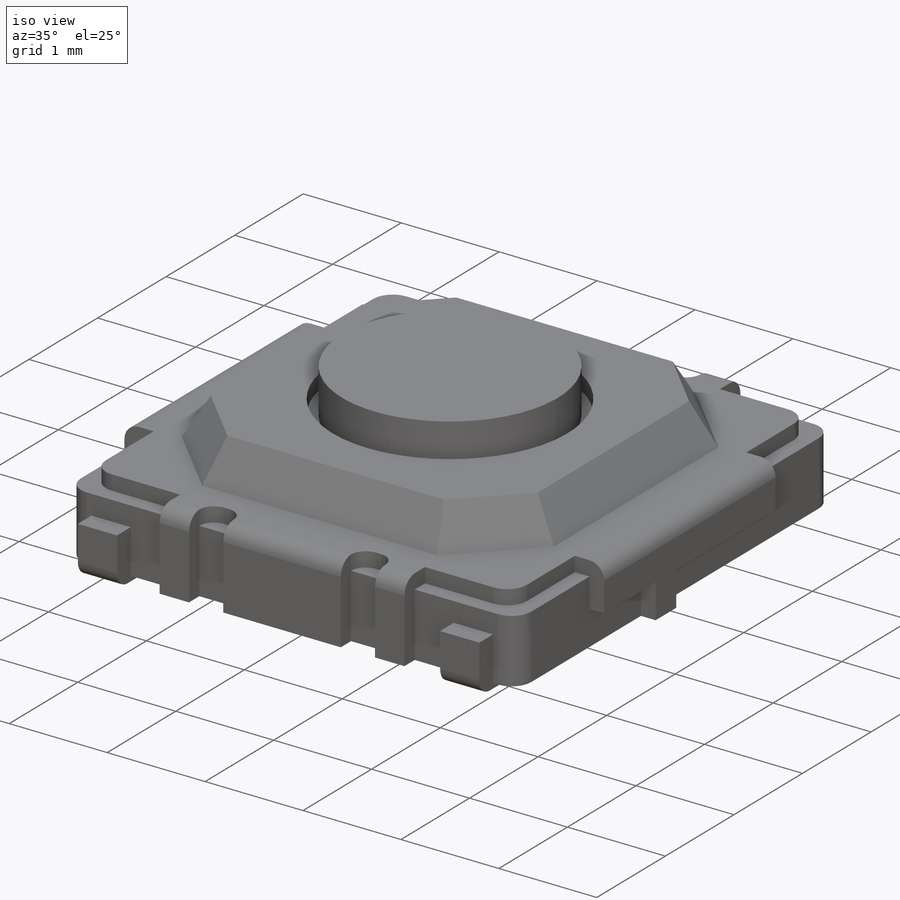
[diagram: iso view]
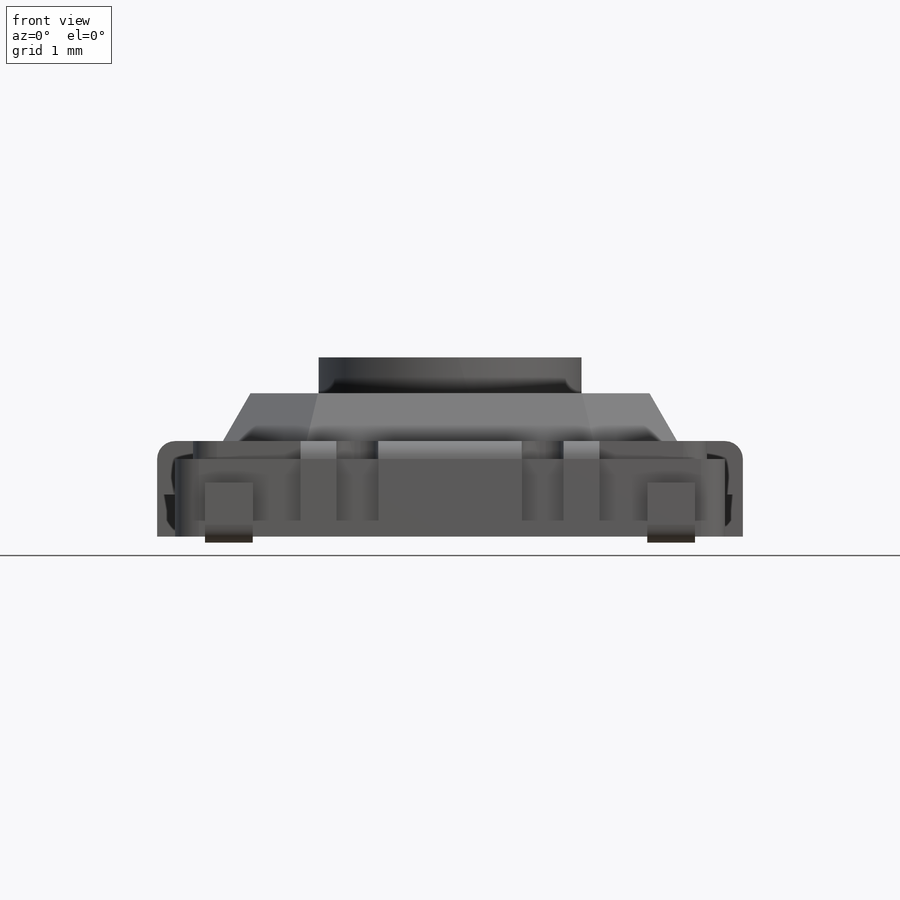
[diagram: front view]
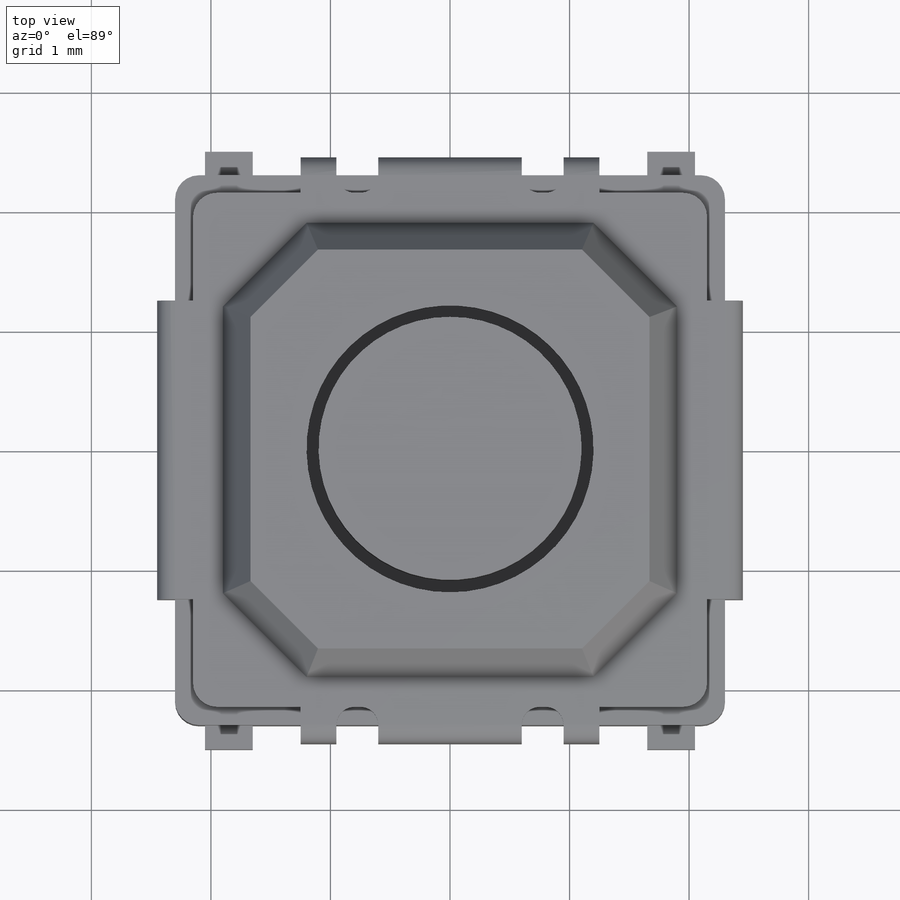
[diagram: top view]
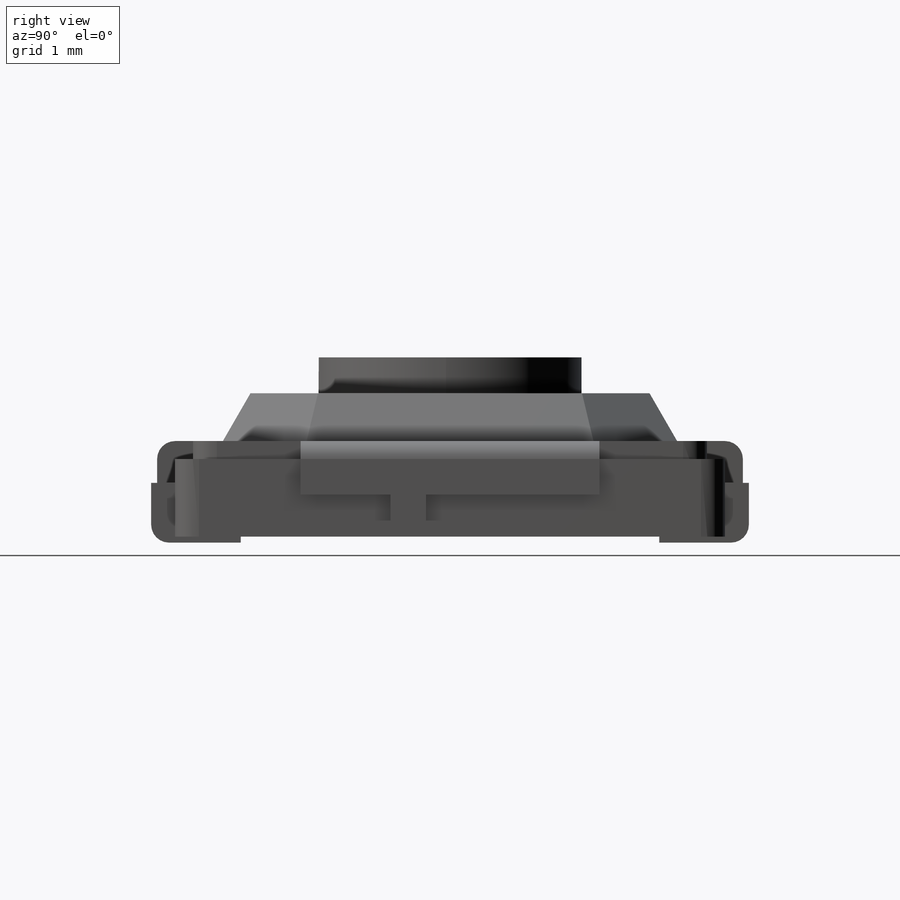
[diagram: right view]
SOLIDWORKS PART (.sldprt)
format: sldprt  version: not decoded by parser v0  size: 572,416 bytes
history: native  units: mm
features: sketch x9, extrude x5, cut_extrude x3, fillet x3, material x1, plane x1 (+12 scaffold rows collapsed)
feature tree (34):
  scaffold x12  (default folders/planes/origin — collapsed)
  material  "Material <not specified>"
  sketch  "Sketch1"  dims[c1.D5=2.2mm c1.D6=2.4mm c1.D1=4.6mm c1.D2=4.6mm c1.D3=2.3mm c1.D4=2.3mm c1.D7=3.8mm c1.D8=3.4mm c2.D2=1.9mm c2.D9=1.9mm c2.D10=1.7mm c2.D11=1.7mm c2.D12=0.2mm c2.D13=0.2mm c2.D14=0.2mm c2.D15=0.2mm c2.D16=0.2mm c2.D17=0.2mm c2.D18=~0.738305mm c3.D18=135.0deg c3.D19=2.4mm c3.D20=1.2mm c3.D21=0.15mm c3.D22=0.15mm c3.D23=1.25mm c3.D24=0.6mm c3.D25=0.15mm c3.D26=0.15mm c3.D27=1.25mm c3.D28=0.3mm]
  extrude  "Extrude1"  Depth=0.65mm
  extrude  "Extrude2"  [1 undecoded]
  sketch  "Sketch1<3>"  dims[D1=0.8mm]
  sketch  "Sketch2"  dims[D1=0.0mm D2=0.0mm D3=0.0mm D4=0.0mm D5=0.0mm D6=0.0mm]
  extrude  "Extrude3"  Depth=0.4mm
  extrude  "Extrude4"  [1 undecoded]
  sketch  "Sketch1<4>"  dims[D1=1.5mm]
  sketch  "Sketch3"  dims[D1=0.0mm D2=0.0mm D3=0.0mm D4=0.0mm D5=0.0mm D6=0.0mm]
  cut_extrude  "Cut-Extrude1"  Depth=0.15mm
  sketch  "Sketch4"  dims[D1=0.3mm D2=0.2mm D3=0.45mm]
  cut_extrude  "Cut-Extrude2"  Depth=0.15mm
  sketch  "Sketch5"  dims[D1=0.0mm D2=0.0mm]
  cut_extrude  "Cut-Extrude3"  Depth=0.15mm
  sketch  "Sketch6"  dims[c1.D1=0.15mm c1.D2=1.85mm c1.D3=0.4mm c1.D4=1.75mm c2.D1=2.5mm]
  extrude  "Extrude5"  Depth=0.45mm
  fillet  "Fillet1"  Radius=0.2mm
  fillet  "Fillet2"  Radius=0.15mm
  fillet  "Fillet3"  Radius=0.15mm
  plane  "Board Plane"  Offset=0.05mm
  sketch  "Component_Outline"
decode coverage: 17 of 20 modeling features carry decoded parameters
note: ~ marks probable driven/reference dimensions
note: 2 parameter values undecoded
note: suppression state not decoded; provenance and decode notes live in map.json
